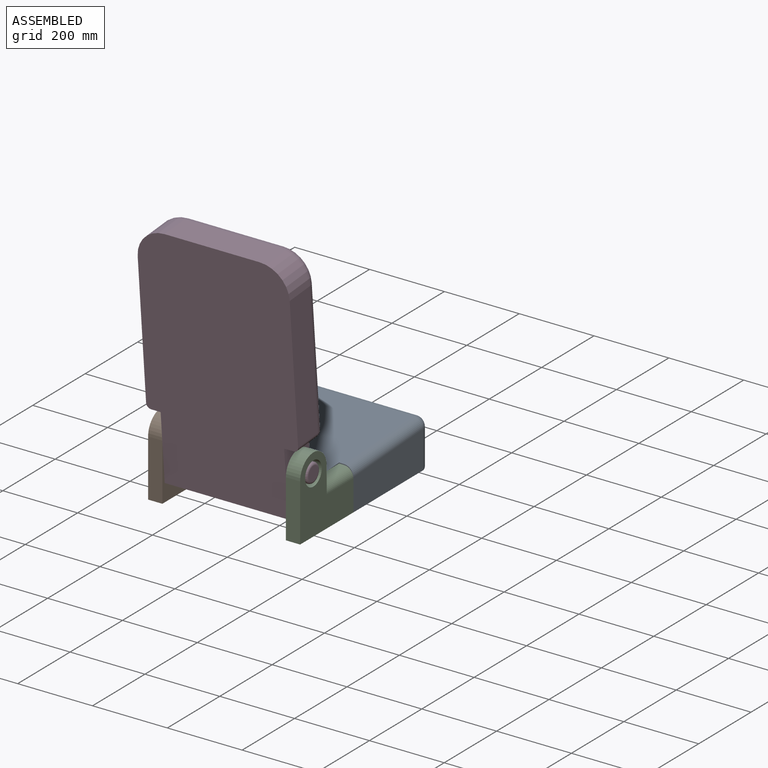
[diagram: assembled view]
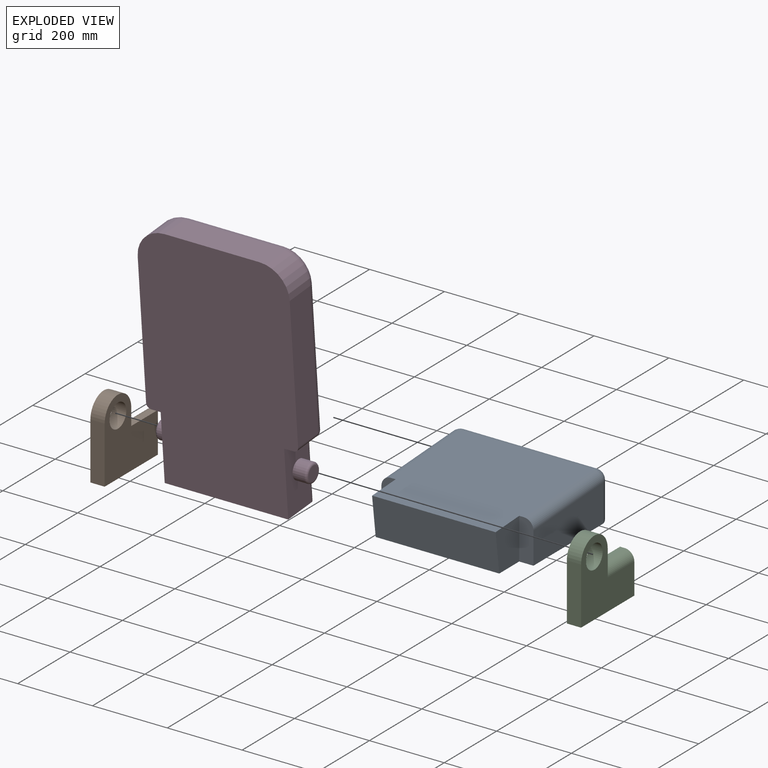
[diagram: exploded view]
GUIDED TOUR — MATED ASSEMBLY (Onshape document 589139c736235f0f71808e20, AutoMate assembly 589139c736235f0f71808e20_40f0532479a1c52bfd5f095e_a50df684267437fe95cbff02_default)

This assembly has 4 components, labeled P0..P3 below (a component is one placed occurrence of a part; the same part can appear more than once), held together by 8 mates. A mate is a constraint between two components; its type names the relative motion it leaves free:
  CYLINDRICAL — leaves both rotation about and translation along the listed axis free,
  PLANAR — leaves sliding in the plane through the listed point (normal = the listed direction) and rotation about that normal free.
Axis/direction vectors are unit vectors and 'through' points are millimeter coordinates, both in the assembly's world frame.

MATES
  1. PLANAR "Planar 1": P3 <-> P1, direction (-1.000, 0.000, 0.000) through (-57.21, 164.34, 188.97) mm
  2. PLANAR "Planar 4": P2 <-> P0, direction (0.000, 1.000, 0.000) through (292.04, 322.73, 51.72) mm
  3. PLANAR "Planar 5": P0 <-> P2, direction (0.000, 0.000, -1.000) through (107.89, 422.88, 51.72) mm
  4. PLANAR "Planar 6": P1 <-> P0, direction (1.000, 0.000, 0.000) through (-57.21, 322.73, 159.67) mm
  5. PLANAR "Planar 3": P0 <-> P2, direction (1.000, 0.000, 0.000) through (272.99, 281.37, 107.12) mm
  6. CYLINDRICAL "Cylindrical 1": P2 <-> P3, axis (1.000, 0.000, 0.000) through (311.09, 170.33, 204.12) mm
  7. CYLINDRICAL "Cylindrical 2": P1 <-> P3, axis (-1.000, 0.000, 0.000) through (-95.31, 170.33, 204.12) mm
  8. PLANAR "Planar 7": P1 <-> P0, direction (0.000, 0.000, -1.000) through (-76.26, 221.13, 51.72) mm

ASSEMBLY ORDER
  1. P3 — the base component [order verified]
  2. P0 [order verified]
  3. P2 [order verified]
  4. P1 [order verified]
Order-tag legend:
  [order verified] — this step's position reverses a verified removal order: the component was checked to insert without passing through the ones already placed.

Of the 4 components, 1 carries the full construction recipe — the FeatureScript program that regenerates the part's solid from scratch; the rest are supplied as boundary geometry only.
Each toured component is shown spotlighted twice — in the assembled view, then in the exploded view, where a leader line traces a displaced component back to its assembled socket (saturated green if recipe-attached, orange if geometry-only; every other component desaturated gray) — followed by its recipe or geometry summary and the mates that hold it.
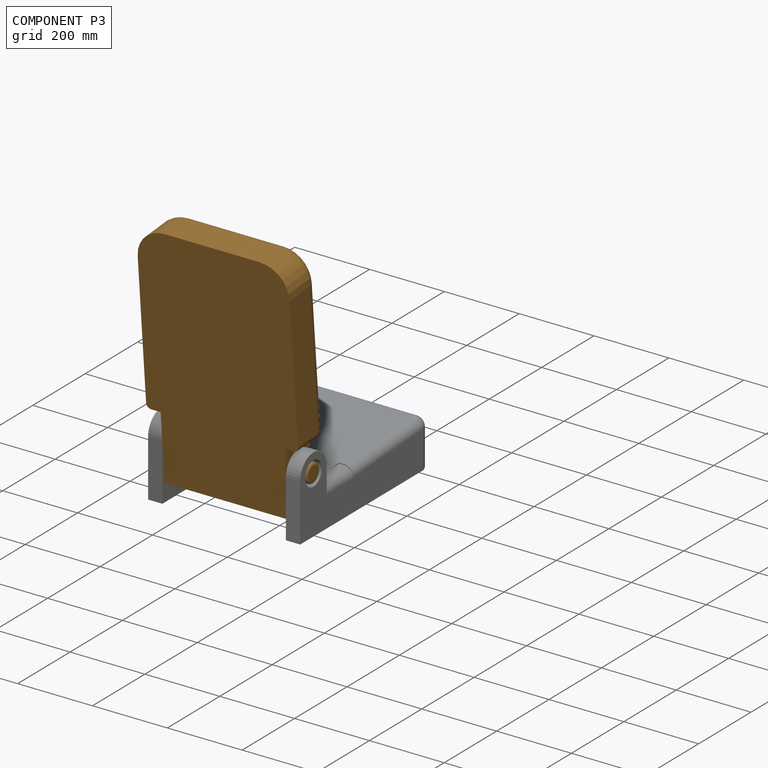
[diagram: component P3 — assembled]
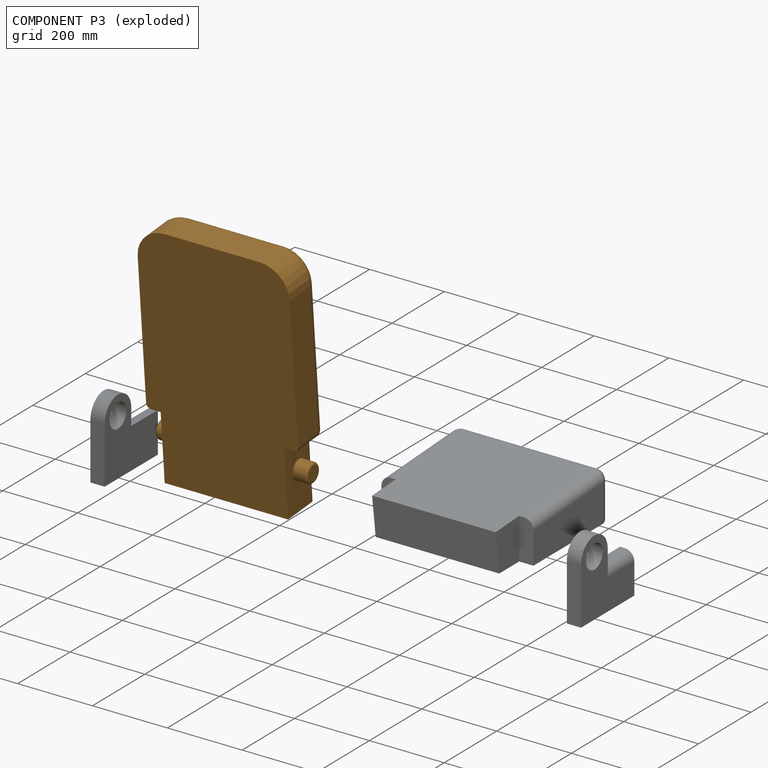
[diagram: component P3 — exploded]
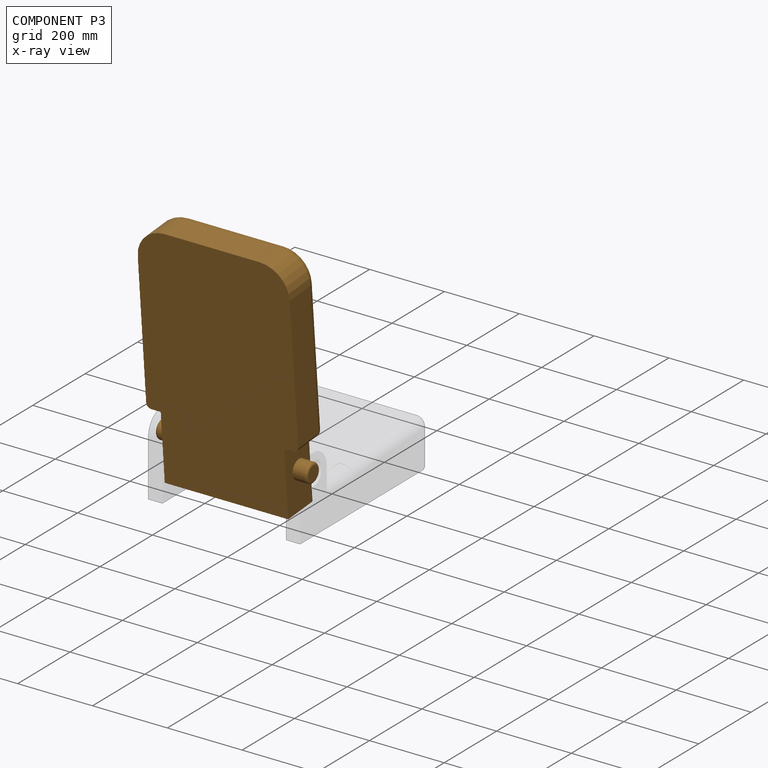
[diagram: component P3 — x-ray view]
COMPONENT P3 — geometry summary (no construction recipe available for this part):
  bounding box: 641.3 x 419.0 x 103.7 mm
  B-rep topology: 1 solid, 31 faces, 140 edges
  volume: 24548771 mm^3 (88% of its bounding box)
  symmetry: mirror-symmetric across its x mid-plane
Held by: PLANAR mate "Planar 1" to P1; CYLINDRICAL mate "Cylindrical 1" to P2; CYLINDRICAL mate "Cylindrical 2" to P1.
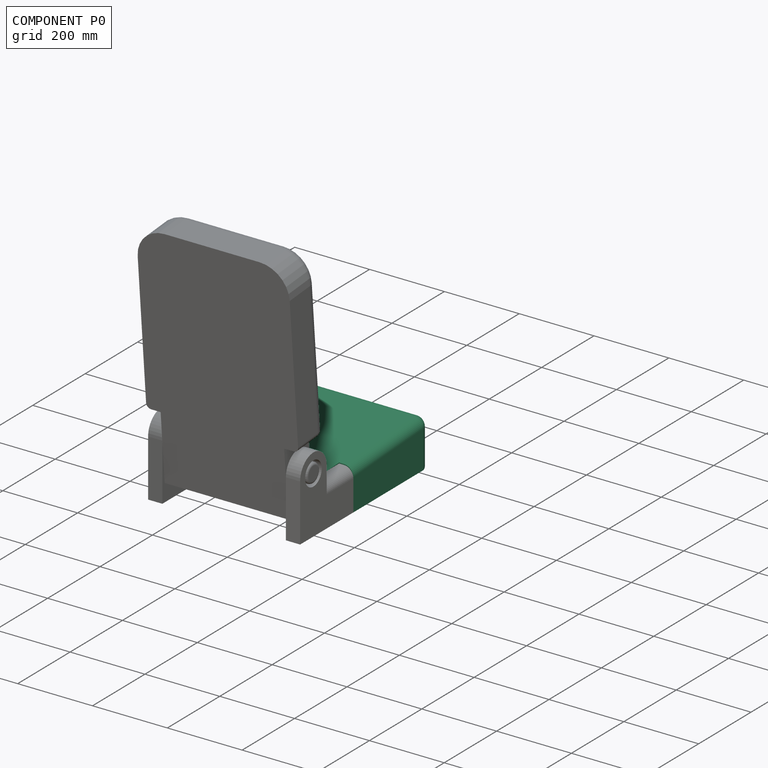
[diagram: component P0 — assembled]
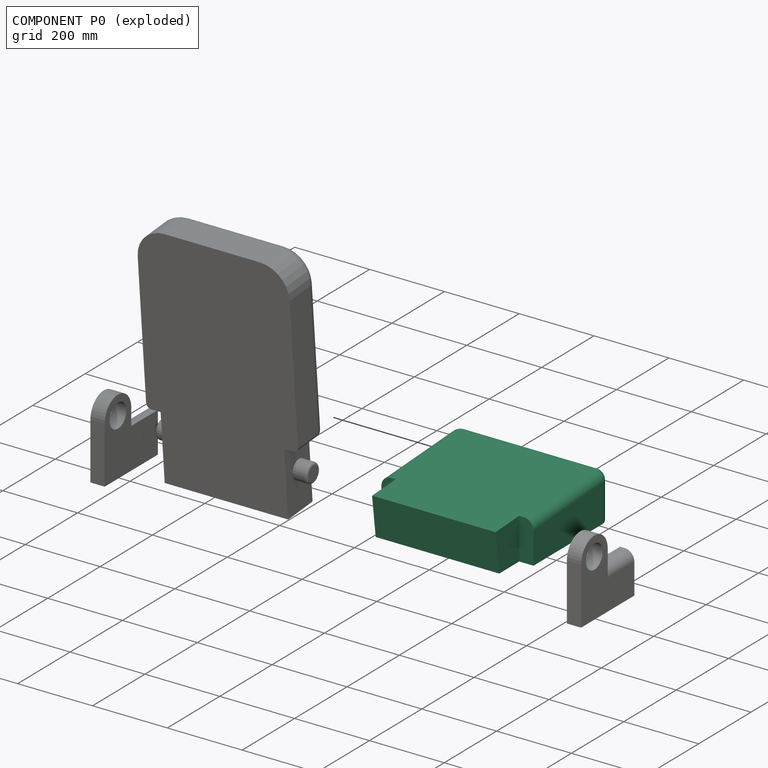
[diagram: component P0 — exploded]
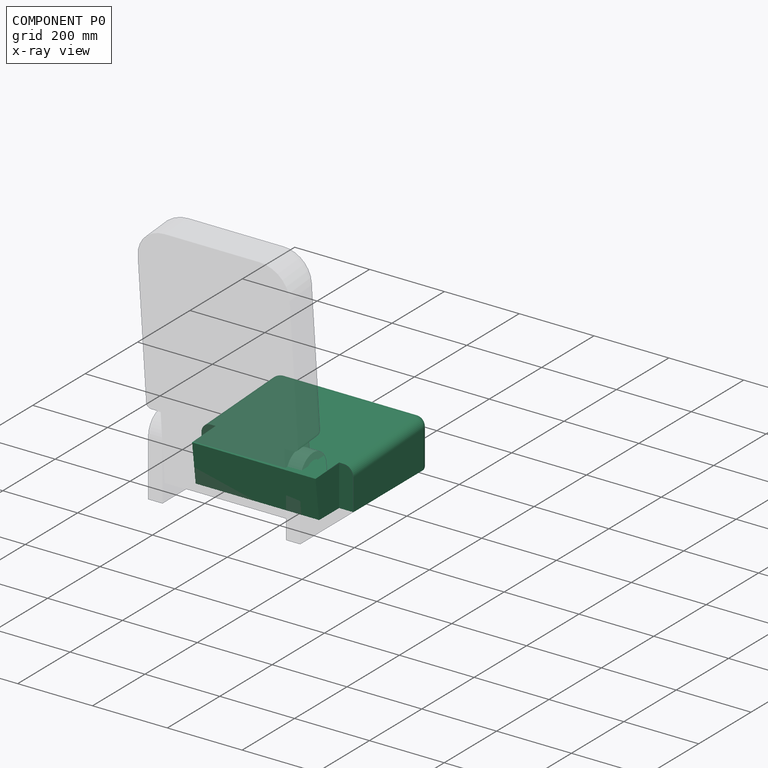
[diagram: component P0 — x-ray view]
COMPONENT P0 — recipe-attached (CADFS 00491499, mesh-verified: the recipe's output STEP matches this component's geometry to below the mesh-comparison resolution (tessellation chordal tolerance ~0.856 mm)).
Held by: PLANAR mate "Planar 4" to P2; PLANAR mate "Planar 5" to P2; PLANAR mate "Planar 6" to P1; PLANAR mate "Planar 3" to P2; PLANAR mate "Planar 7" to P1.
Construction recipe (FeatureScript — the CAD program that rebuilds this solid; sketch coordinates are in the units given by the * unit suffixes, e.g. mm):

FeatureScript 1511;
import(path : "onshape/std/geometry.fs", version : "1511.0");
import(path : "onshape/std/common.fs", version : "1511.0");
const mm = millimeter;
const VERTEX = EntityType.VERTEX;
const EDGE = EntityType.EDGE;
const FACE = EntityType.FACE;
const BODY = EntityType.BODY;
function v(x, y){return vector(x, y);}
function OD(order){return orderDisambiguation(order);}
function OSD(set){return originalSetDisambiguation(set);}
function TD(topology){return topologyDisambiguation(topology);}
function TDD(query){return trueDependencyDisambiguation(query);}
function sQuery(a, b, c) {return sketchEntityQuery(a, b, c);}

annotation { "Feature Type Name" : "Feature", "Feature Type Description" : "" }
export const myFeature = defineFeature(function(context is Context, id is Id, definition is map)
    precondition{}
    {
        {
            var Q0;
            Q0=qCreatedBy(makeId("Right.planeOp"),FACE);
            var sketch = newSketch(context, id + "F0", { "sketchPlane" : qUnion([Q0])});
            skLineSegment(sketch, "E0", {"start": v(126.96, 39.05) * mm, "end": v(-253.42, 60.9) * mm});
            skLineSegment(sketch, "E1", {"start": v(-253.42, 60.9) * mm, "end": v(-253.42, -66.1) * mm});
            skLineSegment(sketch, "E2", {"start": v(126.96, 39.05) * mm, "end": v(113.1, -66.1) * mm});
            skLineSegment(sketch, "E3", {"start": v(-253.42, -66.1) * mm, "end": v(113.1, -66.1) * mm});
            skSolve(sketch);
        }
        {
            var Q0;
            Q0=qSketchRegion(id+"F0",true);
            extrude(context, id + "F1", {"entities" : qUnion([Q0]), "depth" : 406.4 * mm});
        }
        {
            var Q0;
            Q0=makeQuery(id+"F1.opExtrude","CAP_EDGE",EDGE,{"disambiguationData":[OSD([sQuery(id+"F0.wireOp",EDGE,"E0")])],"isStart":true});
            var Q1;
            Q1=makeQuery(id+"F1.opExtrude","SWEPT_EDGE",EDGE,{"disambiguationData":[OSD([sQuery(id+"F0.wireOp",EDGE,"E0"),sQuery(id+"F0.wireOp",EDGE,"E1")])]});
            var Q2;
            Q2=makeQuery(id+"F1.opExtrude","CAP_EDGE",EDGE,{"disambiguationData":[OSD([sQuery(id+"F0.wireOp",EDGE,"E0")])],"isStart":false});
            var Q3;
            Q3=makeQuery(id+"F1.opExtrude","CAP_EDGE",EDGE,{"disambiguationData":[OSD([sQuery(id+"F0.wireOp",EDGE,"YyN7SAlZ-oyX6-6t5Q-jrlA-fN3rV7B4wyZS")])],"isStart":true});
            var Q4;
            Q4=makeQuery(id+"F1.opExtrude","CAP_EDGE",EDGE,{"disambiguationData":[OSD([sQuery(id+"F0.wireOp",EDGE,"E1")])],"isStart":true});
            var Q5;
            Q5=makeQuery(id+"F1.opExtrude","SWEPT_EDGE",EDGE,{"disambiguationData":[OSD([sQuery(id+"F0.wireOp",EDGE,"YyN7SAlZ-oyX6-6t5Q-jrlA-fN3rV7B4wyZS"),sQuery(id+"F0.wireOp",EDGE,"E1")])]});
            var Q6;
            Q6=makeQuery(id+"F1.opExtrude","CAP_EDGE",EDGE,{"disambiguationData":[OSD([sQuery(id+"F0.wireOp",EDGE,"E1")])],"isStart":false});
            var Q7;
            Q7=makeQuery(id+"F1.opExtrude","CAP_EDGE",EDGE,{"disambiguationData":[OSD([sQuery(id+"F0.wireOp",EDGE,"YyN7SAlZ-oyX6-6t5Q-jrlA-fN3rV7B4wyZS")])],"isStart":false});
            fillet(context, id + "F2", {"entities" : qUnion([Q0, Q1, Q2, Q3, Q4, Q5, Q6, Q7]), "radius" : 25.4 * mm, "tangentPropagation" : true, "allowEdgeOverflow" : false});
        }
        {
            var Q0;
            Q0=makeQuery(id+"F1.opExtrude","SWEPT_FACE",FACE,{"disambiguationData":[OSD([sQuery(id+"F0.wireOp",EDGE,"E3")])]});
            var sketch = newSketch(context, id + "F3", { "sketchPlane" : qUnion([Q0])});
            skLineSegment(sketch, "E4.bottom", {"start": v(-51.12, -191.01) * mm, "end": v(38.1, -191.01) * mm});
            skLineSegment(sketch, "E4.top", {"start": v(-51.12, -36.9) * mm, "end": v(38.1, -36.9) * mm});
            skLineSegment(sketch, "E4.left", {"start": v(-51.12, -191.01) * mm, "end": v(-51.12, -36.9) * mm});
            skLineSegment(sketch, "E4.right", {"start": v(38.1, -191.01) * mm, "end": v(38.1, -36.9) * mm});
            skLineSegment(sketch, "E5", {"start": v(203.2, -113.1) * mm, "end": v(203.2, 159.34) * mm});
            skLineSegment(sketch, "E6.MirrorCS", {"start": v(368.3, -191.01) * mm, "end": v(368.3, -36.9) * mm});
            skLineSegment(sketch, "E7.MirrorCS", {"start": v(457.52, -36.9) * mm, "end": v(368.3, -36.9) * mm});
            skLineSegment(sketch, "E8.MirrorCS", {"start": v(457.52, -191.01) * mm, "end": v(457.52, -36.9) * mm});
            skLineSegment(sketch, "E9.MirrorCS", {"start": v(457.52, -191.01) * mm, "end": v(368.3, -191.01) * mm});
            skSolve(sketch);
        }
        {
            var Q0;
            Q0=qSketchRegion(id+"F3",true);
            extrude(context, id + "F4", {"entities" : qUnion([Q0]), "operationType" : NewBodyOperationType.REMOVE, "oppositeDirection" : true, "depth" : 127 * mm});
        }
    });
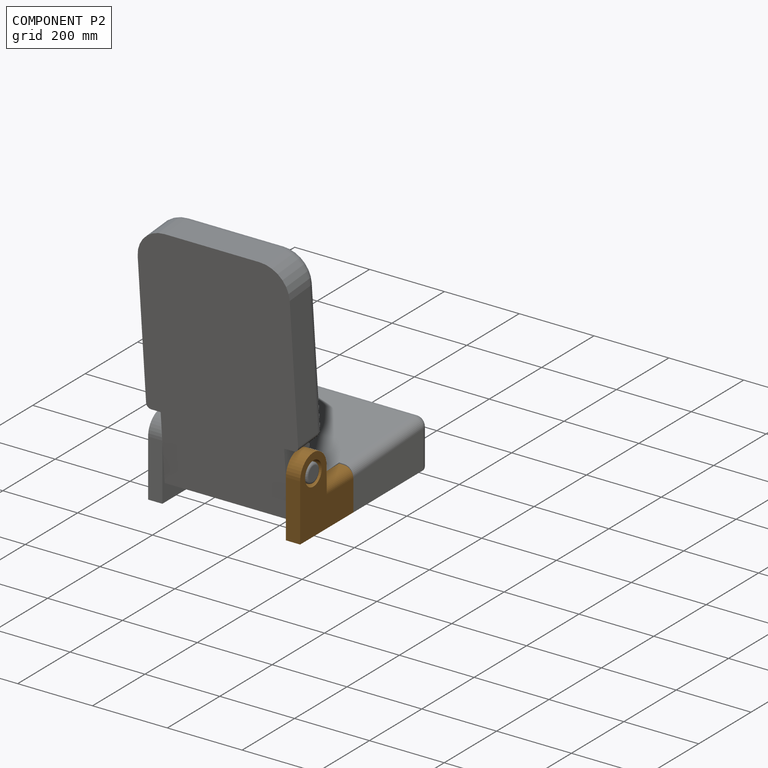
[diagram: component P2 — assembled]
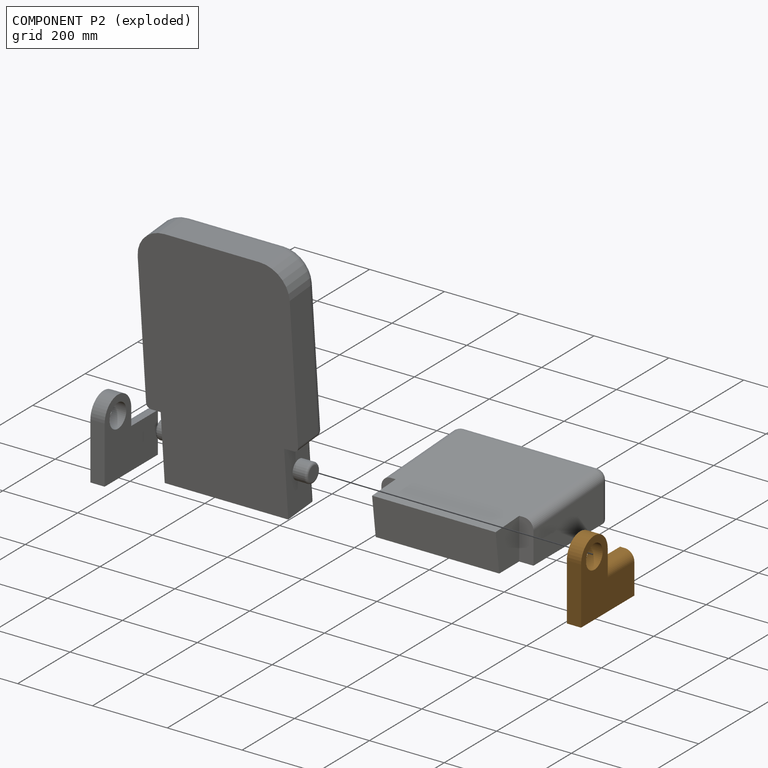
[diagram: component P2 — exploded]
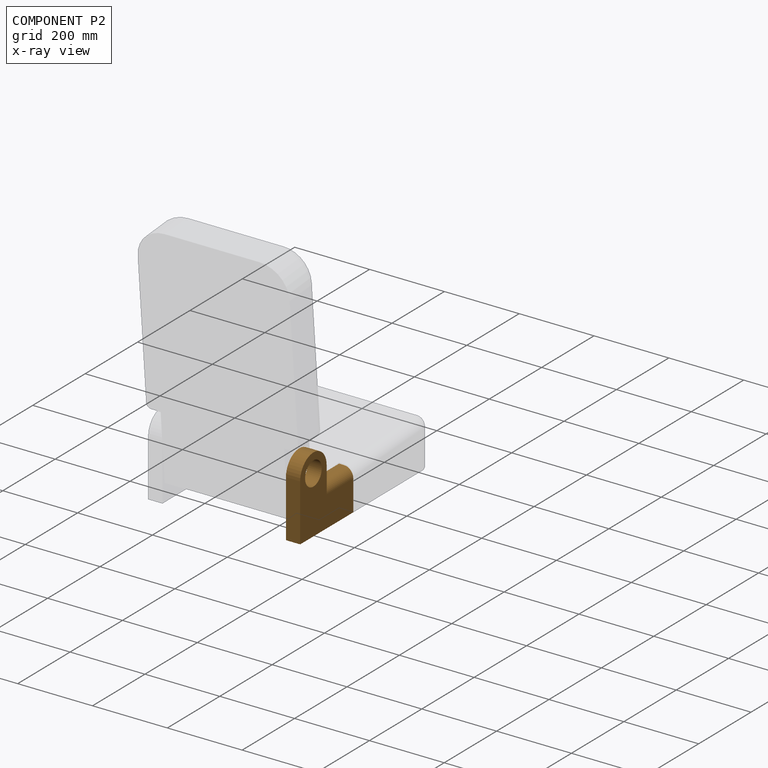
[diagram: component P2 — x-ray view]
COMPONENT P2 — geometry summary (no construction recipe available for this part):
  bounding box: 203.2 x 203.2 x 38.1 mm
  B-rep topology: 1 solid, 10 faces, 50 edges
  volume: 1027522 mm^3 (65% of its bounding box)
Held by: PLANAR mate "Planar 4" to P0; PLANAR mate "Planar 5" to P0; PLANAR mate "Planar 3" to P0; CYLINDRICAL mate "Cylindrical 1" to P3.
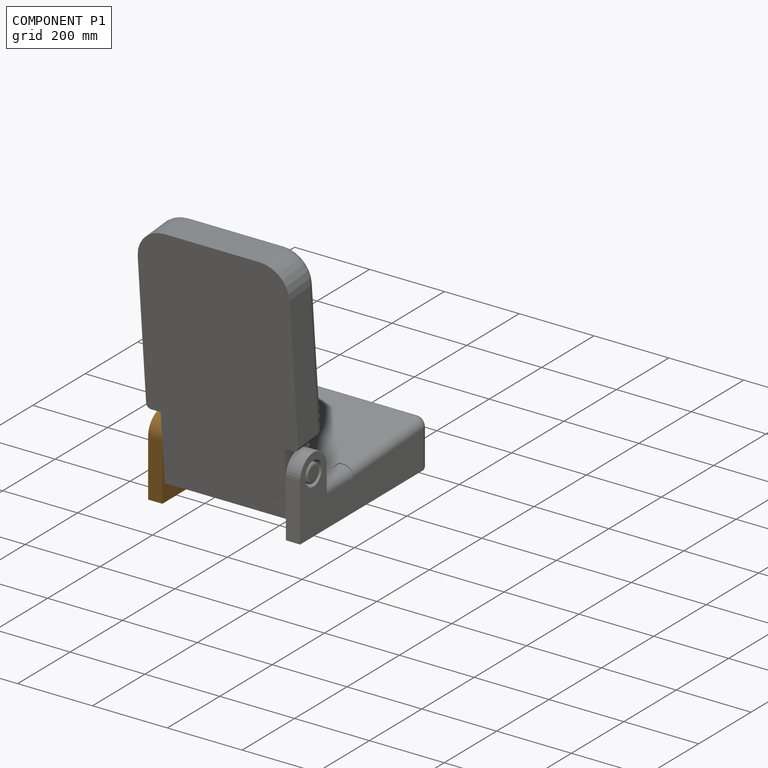
[diagram: component P1 — assembled]
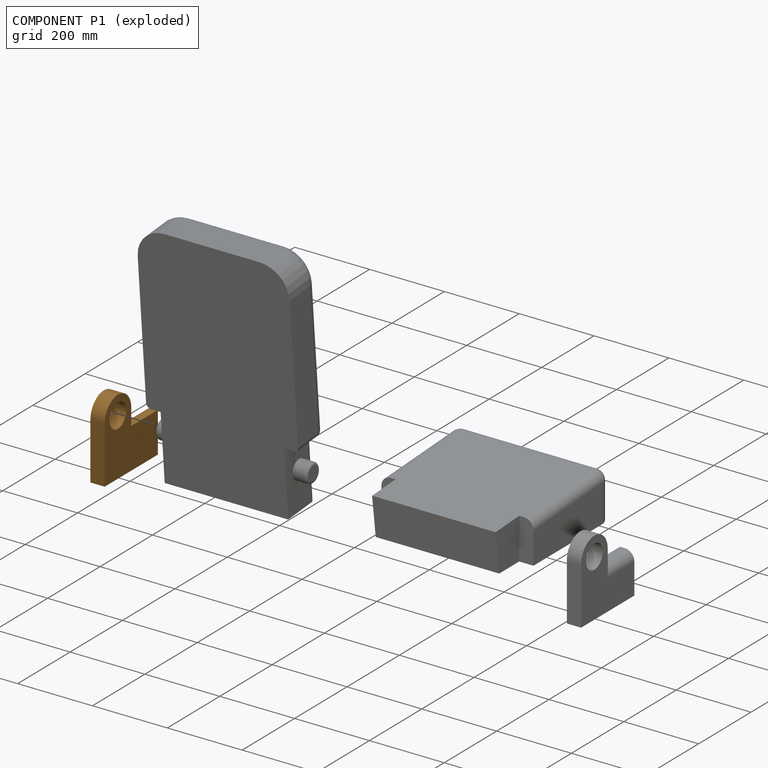
[diagram: component P1 — exploded]
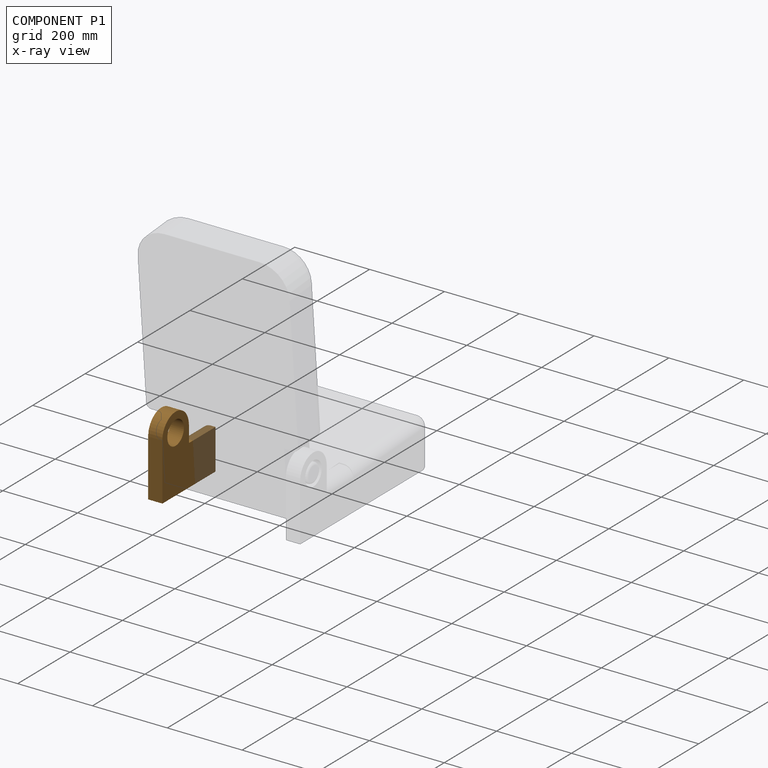
[diagram: component P1 — x-ray view]
COMPONENT P1 — geometry summary (no construction recipe available for this part):
  bounding box: 203.2 x 203.2 x 38.1 mm
  B-rep topology: 1 solid, 10 faces, 50 edges
  volume: 1027522 mm^3 (65% of its bounding box)
Held by: PLANAR mate "Planar 1" to P3; PLANAR mate "Planar 6" to P0; CYLINDRICAL mate "Cylindrical 2" to P3; PLANAR mate "Planar 7" to P0.
PROVENANCE & LICENSES
Assembly (occurrences, transforms, mates, per-part STEP geometry): AutoMate dataset, Zenodo record 7776208, CC0.
Construction recipes: CADFS (HuggingFace VladPyatov/CADFS, CC-BY-4.0, layered over the ABC dataset), FeatureScript reconstruction programs keyed by ABC model id.
Join: ABC meta listings map ABC model id -> Onshape documentId; within a shared document, parts are matched by geometric signature (bounding-box dims + volume at 0.1% relative tolerance, exact B-rep face/solid counts).
Verification: 1 of this assembly's 4 components carries a recipe attachment, and every attachment is mesh-verified: the CADFS STEP and the AutoMate member STEP were compared as meshes in their shared local frame (symmetric sampled-point-to-mesh distance); worst across the 1 attachment: below the mesh-comparison resolution (tessellation chordal tolerance ~0.856 mm) on a 571 mm part.
Renders: orthographic iso camera (az 35 / el 25); the floor grid conveys scale (grid pitch printed in each image; no ruler). In the exploded view each component is displaced by its stored offset vector: the offsets alone carry the explosion direction (mate normal/axis signs are not orientation cues and do not encode it), and separation distances are assigned per mate-chain, not proportionally to assembly-order depth.
